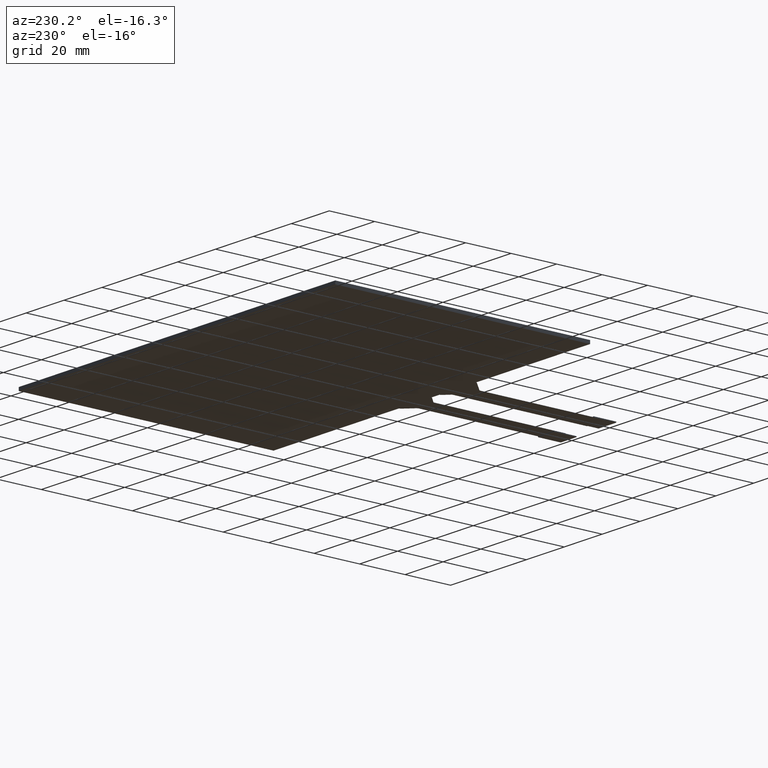
[diagram: clean part render]
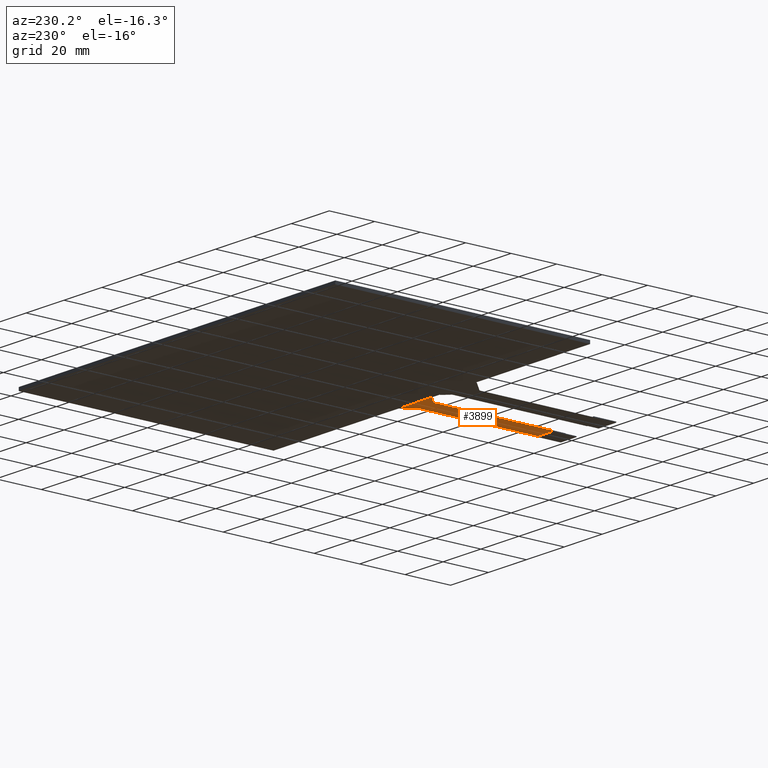
[diagram: same view with one face highlighted and labeled with its STEP entity id]
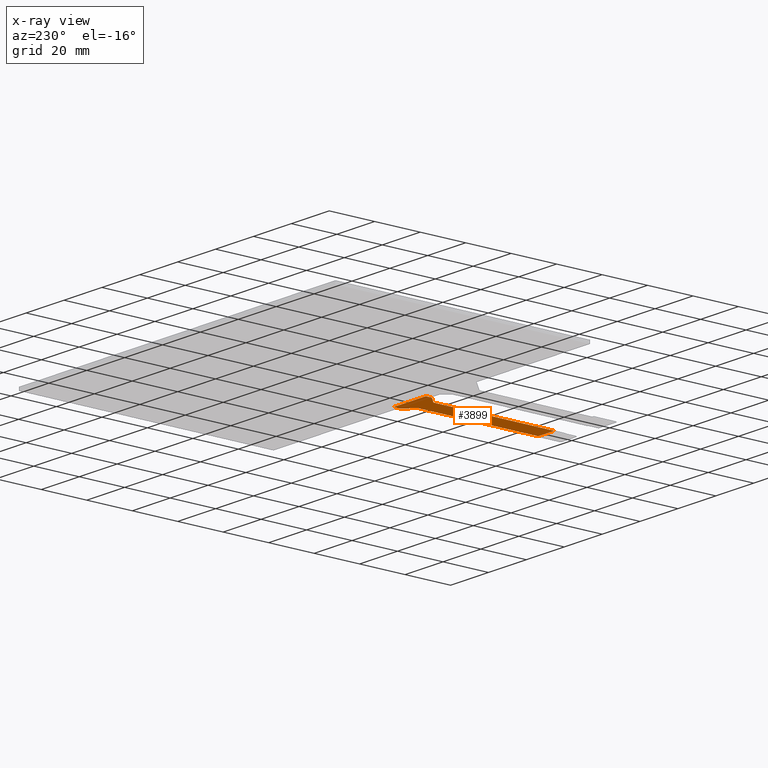
[diagram: x-ray of the same camera — body ghosted, the highlighted face saturated]
A machine part, auxiliary view. The second image highlights one B-rep face of the part: STEP entity #3899.
The next image is the same camera in x-ray: the body ghosted, the highlighted face saturated — about 0% of this face is hidden behind the body in this view.
In plain terms, the highlighted planar face has unit normal (0, 0, -1).
Its self-contained STEP definition (entity closure, byte-faithful):
#209=PLANE('',#4133);
#399=FACE_OUTER_BOUND('',#589,.T.);
#589=EDGE_LOOP('',(#3608,#3609,#3610,#3611,#3612,#3613,#3614,#3615,#3616,
#3617,#3618,#3619));
#616=LINE('',#5125,#1144);
#630=LINE('',#5161,#1158);
#634=LINE('',#5171,#1162);
#1090=LINE('',#6119,#1618);
#1097=LINE('',#6132,#1625);
#1098=LINE('',#6134,#1626);
#1099=LINE('',#6137,#1627);
#1101=LINE('',#6140,#1629);
#1144=VECTOR('',#4166,10.);
#1158=VECTOR('',#4194,10.);
#1162=VECTOR('',#4204,10.);
#1618=VECTOR('',#5010,10.);
#1625=VECTOR('',#5025,10.);
#1626=VECTOR('',#5028,10.);
#1627=VECTOR('',#5031,10.);
#1629=VECTOR('',#5035,10.);
#1668=CIRCLE('',#3939,1.);
#1673=CIRCLE('',#3947,1.);
#1674=CIRCLE('',#3950,1.);
#1675=CIRCLE('',#3953,1.);
#1692=VERTEX_POINT('',#5112);
#1693=VERTEX_POINT('',#5113);
#1697=VERTEX_POINT('',#5123);
#1707=VERTEX_POINT('',#5147);
#1712=VERTEX_POINT('',#5159);
#1713=VERTEX_POINT('',#5163);
#1714=VERTEX_POINT('',#5165);
#1715=VERTEX_POINT('',#5169);
#1716=VERTEX_POINT('',#5173);
#2032=VERTEX_POINT('',#6118);
#2034=VERTEX_POINT('',#6130);
#2035=VERTEX_POINT('',#6136);
#2060=EDGE_CURVE('',#1692,#1693,#1668,.T.);
#2066=EDGE_CURVE('',#1692,#1697,#616,.T.);
#2078=EDGE_CURVE('',#1707,#1697,#1673,.T.);
#2084=EDGE_CURVE('',#1707,#1712,#630,.T.);
#2086=EDGE_CURVE('',#1713,#1714,#1674,.T.);
#2089=EDGE_CURVE('',#1713,#1715,#634,.T.);
#2090=EDGE_CURVE('',#1716,#1715,#1675,.T.);
#2562=EDGE_CURVE('',#1712,#2032,#1090,.T.);
#2569=EDGE_CURVE('',#1716,#2034,#1097,.T.);
#2570=EDGE_CURVE('',#2032,#1714,#1098,.T.);
#2571=EDGE_CURVE('',#2035,#1693,#1099,.T.);
#2573=EDGE_CURVE('',#2035,#2034,#1101,.T.);
#3608=ORIENTED_EDGE('',*,*,#2060,.F.);
#3609=ORIENTED_EDGE('',*,*,#2066,.T.);
#3610=ORIENTED_EDGE('',*,*,#2078,.F.);
#3611=ORIENTED_EDGE('',*,*,#2084,.T.);
#3612=ORIENTED_EDGE('',*,*,#2562,.T.);
#3613=ORIENTED_EDGE('',*,*,#2570,.T.);
#3614=ORIENTED_EDGE('',*,*,#2086,.F.);
#3615=ORIENTED_EDGE('',*,*,#2089,.T.);
#3616=ORIENTED_EDGE('',*,*,#2090,.F.);
#3617=ORIENTED_EDGE('',*,*,#2569,.T.);
#3618=ORIENTED_EDGE('',*,*,#2573,.F.);
#3619=ORIENTED_EDGE('',*,*,#2571,.T.);
#3899=ADVANCED_FACE('',(#399),#209,.T.);
#3939=AXIS2_PLACEMENT_3D('',#5114,#4156,#4157);
#3947=AXIS2_PLACEMENT_3D('',#5149,#4185,#4186);
#3950=AXIS2_PLACEMENT_3D('',#5166,#4198,#4199);
#3953=AXIS2_PLACEMENT_3D('',#5174,#4207,#4208);
#4133=AXIS2_PLACEMENT_3D('',#6139,#5033,#5034);
#4156=DIRECTION('center_axis',(0.,0.,1.));
#4157=DIRECTION('ref_axis',(0.925215014364889,-0.379443246340976,0.));
#4166=DIRECTION('',(-0.702133177228052,-0.712045645612443,0.));
#4185=DIRECTION('center_axis',(0.,0.,-1.));
#4186=DIRECTION('ref_axis',(-0.925215014364886,0.379443246340983,0.));
#4194=DIRECTION('',(6.71897992287879E-16,-1.,0.));
#4198=DIRECTION('center_axis',(0.,0.,-1.));
#4199=DIRECTION('ref_axis',(0.922532703276165,0.385918918149878,0.));
#4204=DIRECTION('',(-0.712045645612444,0.702133177228051,0.));
#4207=DIRECTION('center_axis',(0.,0.,1.));
#4208=DIRECTION('ref_axis',(-0.922532703276164,-0.385918918149878,0.));
#5010=DIRECTION('',(-1.,0.,0.));
#5025=DIRECTION('',(0.,1.,0.));
#5028=DIRECTION('',(-1.23256959858111E-16,1.,0.));
#5031=DIRECTION('',(0.,-1.,0.));
#5033=DIRECTION('center_axis',(0.,0.,-1.));
#5034=DIRECTION('ref_axis',(-1.,0.,0.));
#5035=DIRECTION('',(-1.,-5.31525086594928E-17,0.));
#5112=CARTESIAN_POINT('',(19.9620456456124,-61.6420195923318,-0.3));
#5113=CARTESIAN_POINT('',(20.25,-60.9398864151038,-0.3));
#5114=CARTESIAN_POINT('Origin',(19.25,-60.9398864151038,-0.3));
#5123=CARTESIAN_POINT('',(16.2879543543875,-65.3679804076681,-0.3));
#5125=CARTESIAN_POINT('',(16.,-65.66,-0.3));
#5147=CARTESIAN_POINT('',(16.,-66.0701135848962,-0.3));
#5149=CARTESIAN_POINT('Origin',(17.,-66.0701135848962,-0.3));
#5159=CARTESIAN_POINT('',(16.,-118.45,-0.3));
#5161=CARTESIAN_POINT('',(16.,-128.45,-0.3));
#5163=CARTESIAN_POINT('',(7.20213317722804,-65.1045772474036,-0.3));
#5165=CARTESIAN_POINT('',(7.49999999999999,-65.816622893016,-0.3));
#5166=CARTESIAN_POINT('Origin',(6.49999999999999,-65.816622893016,-0.3));
#5169=CARTESIAN_POINT('',(3.54786682277194,-61.5011823503181,-0.3));
#5171=CARTESIAN_POINT('',(3.24999999999999,-61.2074621654501,-0.3));
#5173=CARTESIAN_POINT('',(3.24999999999999,-60.7891367047056,-0.3));
#5174=CARTESIAN_POINT('Origin',(4.24999999999999,-60.7891367047056,-0.3));
#6118=CARTESIAN_POINT('',(7.5,-118.45,-0.3));
#6119=CARTESIAN_POINT('',(9.62499999999999,-118.45,-0.3));
#6130=CARTESIAN_POINT('',(3.24999999999999,-58.45,-0.3));
#6132=CARTESIAN_POINT('',(3.24999999999999,-58.45,-0.3));
#6134=CARTESIAN_POINT('',(7.49999999999999,-65.3982974322715,-0.3));
#6136=CARTESIAN_POINT('',(20.25,-58.45,-0.3));
#6137=CARTESIAN_POINT('',(20.25,-61.35,-0.3));
#6139=CARTESIAN_POINT('Origin',(11.75,-93.45,-0.3));
#6140=CARTESIAN_POINT('',(47.65,-58.45,-0.3));